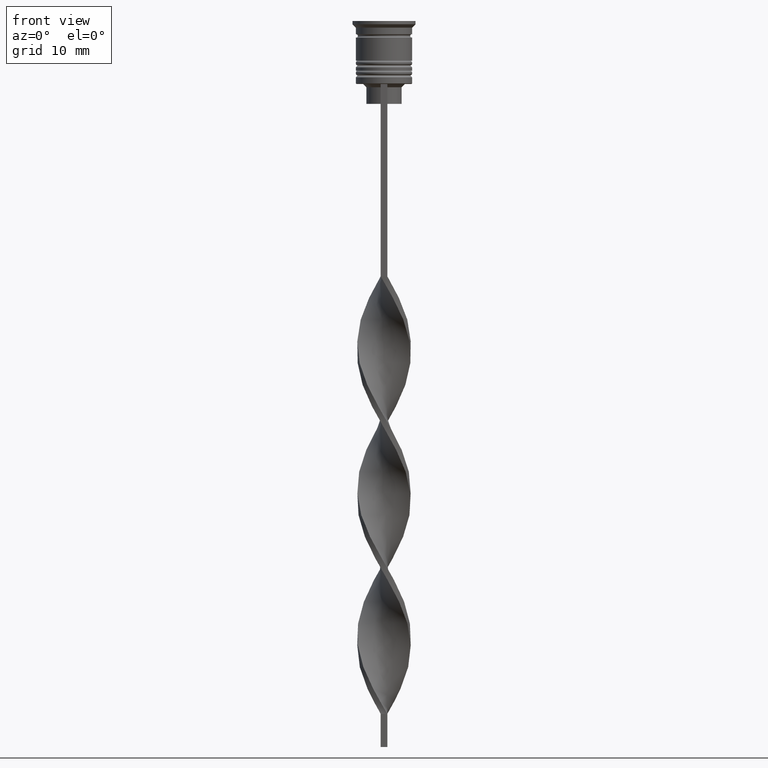
[diagram: clean part render]
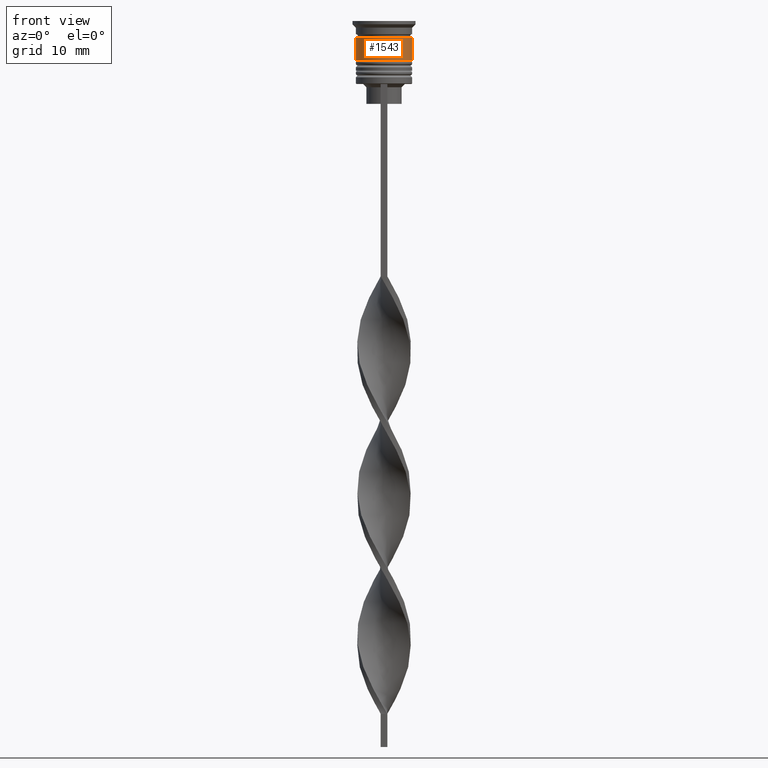
[diagram: same view with one face highlighted and labeled with its STEP entity id]
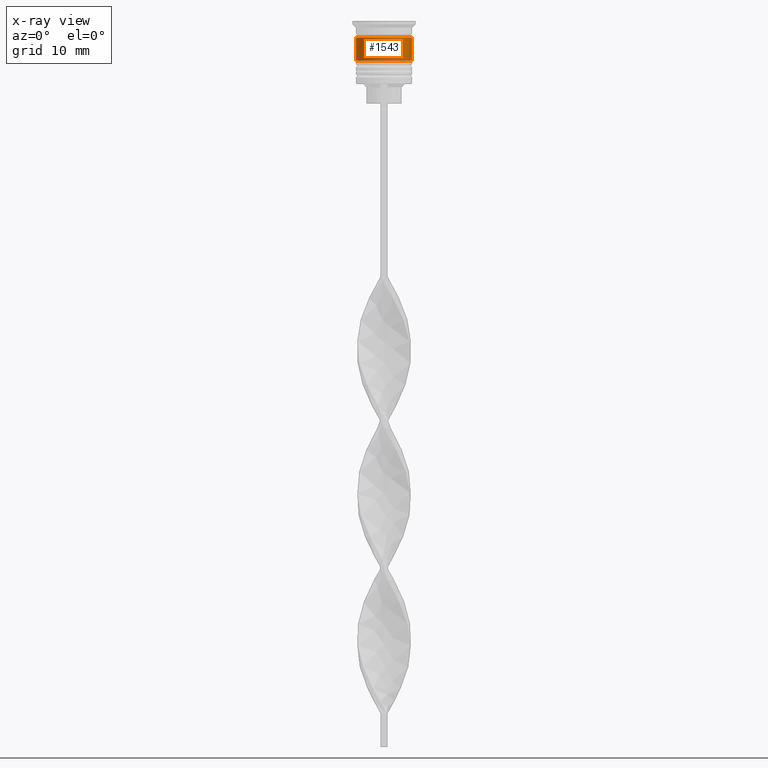
[diagram: x-ray of the same camera — body ghosted, the highlighted face saturated]
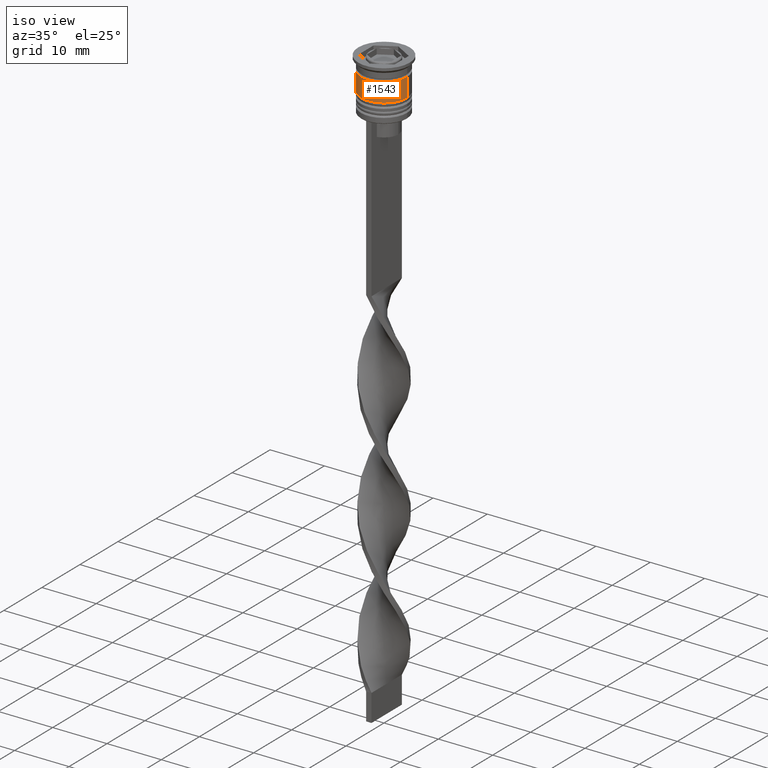
[diagram: same view with one face highlighted and labeled with its STEP entity id]
A machine part, front view. The second image highlights one B-rep face of the part: STEP entity #1543.
The next image is the same camera in x-ray: the body ghosted, the highlighted face saturated — about 0% of this face is hidden behind the body in this view.
A second angle (iso view) of the same face is appended — the face is thin or edge-on in the first view.
In plain terms, the highlighted cylindrical surface (edge-blend (fillet) strip) has radius 4.25 mm, axis along (-0, -0, 1).
Its self-contained STEP definition (entity closure, byte-faithful):
#51 = CARTESIAN_POINT ( 'NONE',  ( 4.250000000000000000, 0.000000000000000000, 0.000000000000000000 ) ) ;
#58 = ORIENTED_EDGE ( 'NONE', *, *, #3451, .F. ) ;
#92 = DIRECTION ( 'NONE',  ( -0.000000000000000000, -0.000000000000000000, 1.000000000000000000 ) ) ;
#100 = DIRECTION ( 'NONE',  ( -0.000000000000000000, -0.000000000000000000, 1.000000000000000000 ) ) ;
#148 = EDGE_CURVE ( 'NONE', #2771, #1924, #2125, .T. ) ;
#547 = VECTOR ( 'NONE', #2343, 1000.000000000000000 ) ;
#605 = FACE_OUTER_BOUND ( 'NONE', #2228, .T. ) ;
#750 = CARTESIAN_POINT ( 'NONE',  ( -4.250000000000000000, 5.204748896376250699E-16, -2.500000000000000000 ) ) ;
#781 = VERTEX_POINT ( 'NONE', #2356 ) ;
#884 = ORIENTED_EDGE ( 'NONE', *, *, #1595, .T. ) ;
#941 = LINE ( 'NONE', #1246, #547 ) ;
#1111 = CARTESIAN_POINT ( 'NONE',  ( 0.000000000000000000, 0.000000000000000000, 0.000000000000000000 ) ) ;
#1146 = DIRECTION ( 'NONE',  ( -0.000000000000000000, -0.000000000000000000, 1.000000000000000000 ) ) ;
#1189 = CARTESIAN_POINT ( 'NONE',  ( -4.250000000000000888, 5.204748896376251685E-16, -6.000000000000000000 ) ) ;
#1246 = CARTESIAN_POINT ( 'NONE',  ( -4.250000000000000000, 5.204748896376250699E-16, 0.000000000000000000 ) ) ;
#1372 = VERTEX_POINT ( 'NONE', #750 ) ;
#1460 = CARTESIAN_POINT ( 'NONE',  ( 0.000000000000000000, 0.000000000000000000, -6.000000000000000000 ) ) ;
#1529 = CARTESIAN_POINT ( 'NONE',  ( 0.000000000000000000, 0.000000000000000000, -2.500000000000000000 ) ) ;
#1543 = ADVANCED_FACE ( 'NONE', ( #605 ), #2184, .T. ) ;
#1581 = CARTESIAN_POINT ( 'NONE',  ( 4.250000000000000888, 0.000000000000000000, -6.000000000000000000 ) ) ;
#1595 = EDGE_CURVE ( 'NONE', #1924, #781, #2524, .T. ) ;
#1730 = AXIS2_PLACEMENT_3D ( 'NONE', #1460, #92, #2296 ) ;
#1741 = EDGE_CURVE ( 'NONE', #1372, #781, #2090, .T. ) ;
#1924 = VERTEX_POINT ( 'NONE', #1581 ) ;
#1939 = ORIENTED_EDGE ( 'NONE', *, *, #148, .T. ) ;
#1981 = DIRECTION ( 'NONE',  ( -0.000000000000000000, -0.000000000000000000, 1.000000000000000000 ) ) ;
#2090 = CIRCLE ( 'NONE', #3246, 4.250000000000000000 ) ;
#2125 = CIRCLE ( 'NONE', #1730, 4.250000000000000888 ) ;
#2184 = CYLINDRICAL_SURFACE ( 'NONE', #3311, 4.250000000000000000 ) ;
#2228 = EDGE_LOOP ( 'NONE', ( #58, #1939, #884, #2834 ) ) ;
#2296 = DIRECTION ( 'NONE',  ( 1.000000000000000000, 0.000000000000000000, 0.000000000000000000 ) ) ;
#2343 = DIRECTION ( 'NONE',  ( -0.000000000000000000, -0.000000000000000000, 1.000000000000000000 ) ) ;
#2356 = CARTESIAN_POINT ( 'NONE',  ( 4.250000000000000000, 0.000000000000000000, -2.500000000000000000 ) ) ;
#2524 = LINE ( 'NONE', #51, #2903 ) ;
#2593 = DIRECTION ( 'NONE',  ( 1.000000000000000000, 0.000000000000000000, 0.000000000000000000 ) ) ;
#2771 = VERTEX_POINT ( 'NONE', #1189 ) ;
#2776 = DIRECTION ( 'NONE',  ( 1.000000000000000000, 0.000000000000000000, 0.000000000000000000 ) ) ;
#2834 = ORIENTED_EDGE ( 'NONE', *, *, #1741, .F. ) ;
#2903 = VECTOR ( 'NONE', #1146, 1000.000000000000000 ) ;
#3246 = AXIS2_PLACEMENT_3D ( 'NONE', #1529, #100, #2593 ) ;
#3311 = AXIS2_PLACEMENT_3D ( 'NONE', #1111, #1981, #2776 ) ;
#3451 = EDGE_CURVE ( 'NONE', #2771, #1372, #941, .T. ) ;